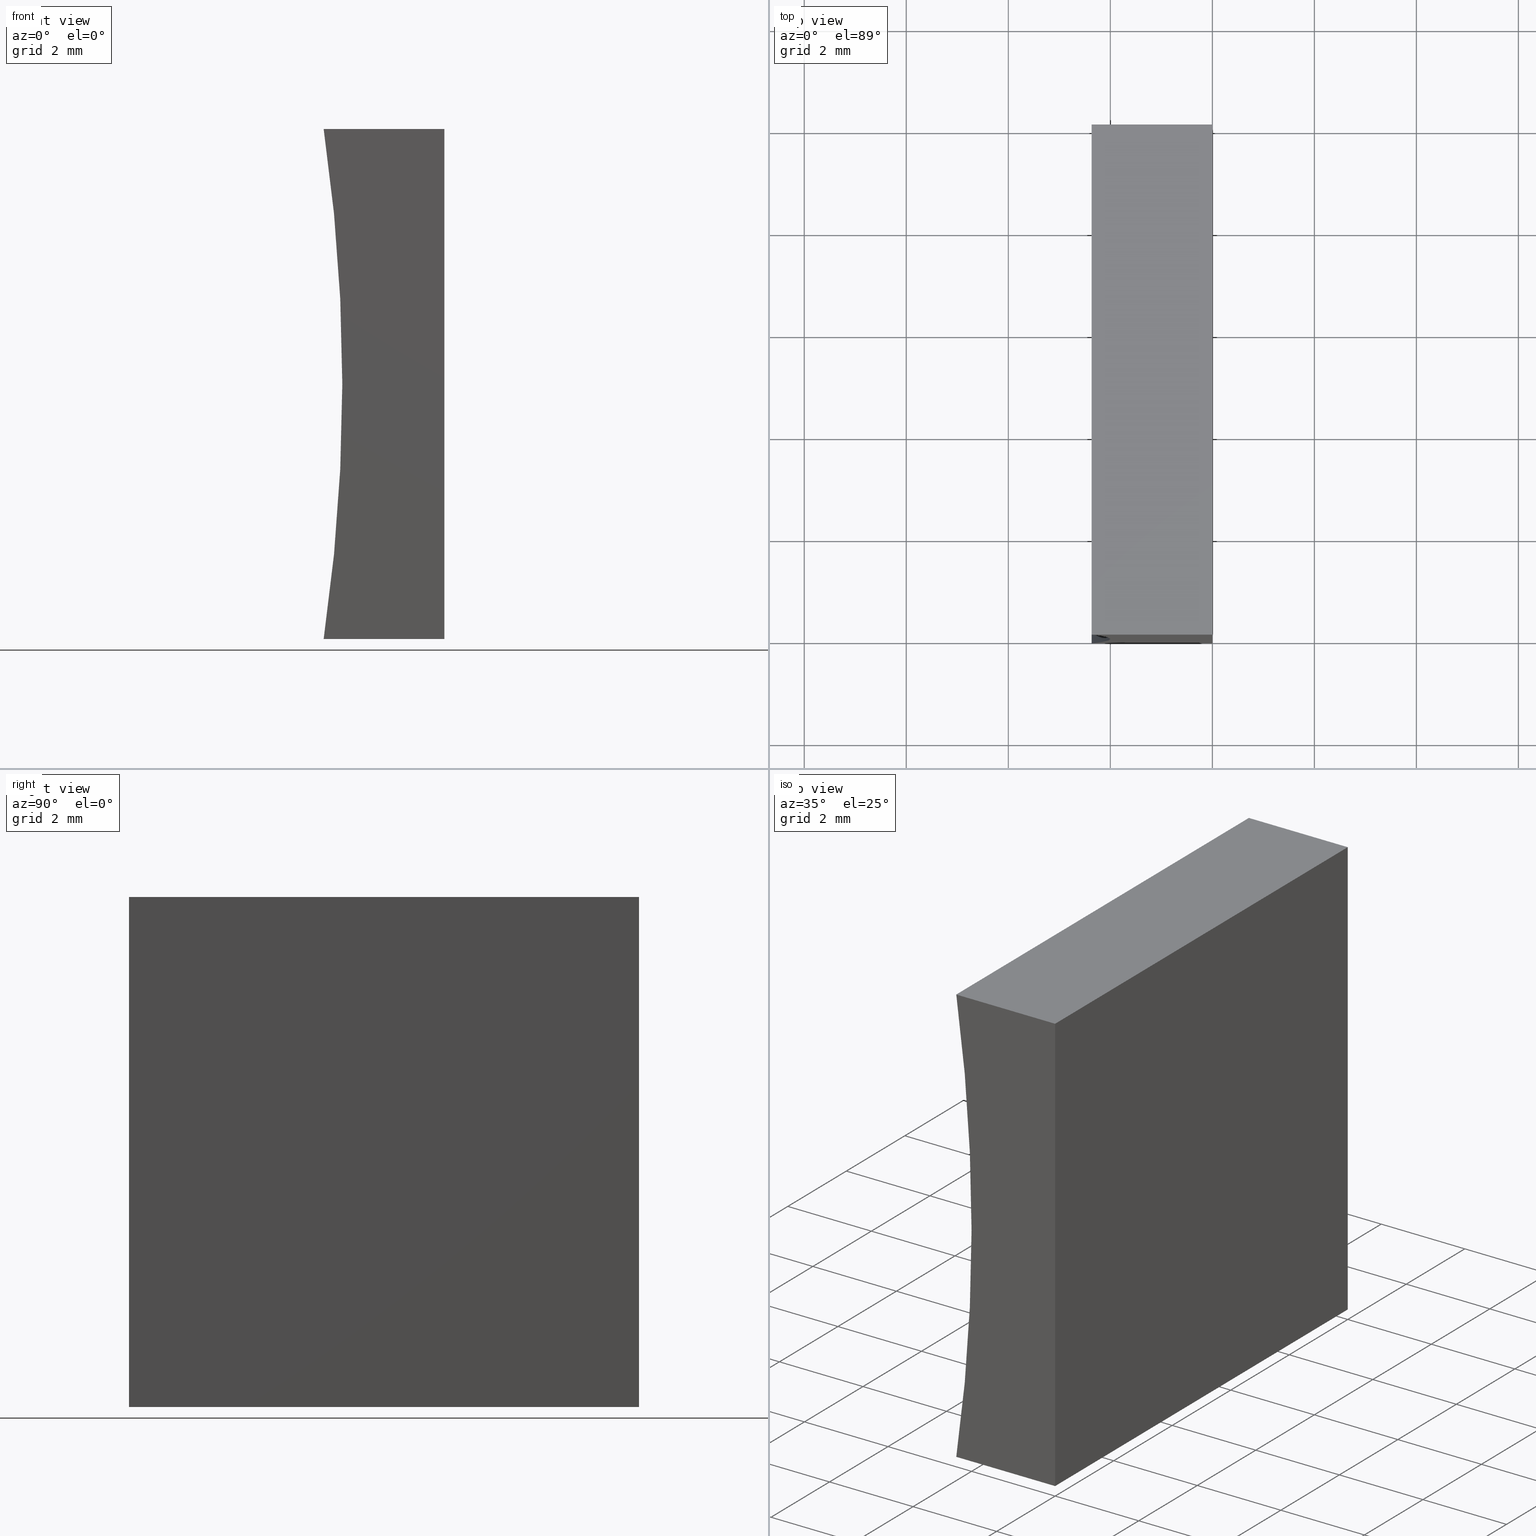
[diagram: canonical four-view strip — front | top / right | iso, engineering-drawing reading convention]
A machine part, canonical four-view strip (front | top / right | iso — engineering-drawing reading convention). The complete STEP part file that produces these views, byte-faithful:
ISO-10303-21;
HEADER;
FILE_DESCRIPTION (( 'STEP AP214' ),
    '1' );
FILE_NAME ('155469.STEP',
    '2019-07-03T05:55:14',
    ( 'user' ),
    ( '΢���й�' ),
    'SwSTEP 2.0',
    'SolidWorks 2016',
    '' );
FILE_SCHEMA (( 'AUTOMOTIVE_DESIGN' ));
ENDSEC;

DATA;
#1 = ORIENTED_EDGE ( 'NONE', *, *, #154, .F. ) ;
#2 = DIRECTION ( 'NONE',  ( 1.000000000000000000, -0.0000000000000000000, -7.332349904615361600E-016 ) ) ;
#3 = COLOUR_RGB ( '',1.000000000000000000, 1.000000000000000000, 1.000000000000000000 ) ;
#4 = FILL_AREA_STYLE_COLOUR ( '', #3 ) ;
#5 = ORIENTED_EDGE ( 'NONE', *, *, #108, .F. ) ;
#6 = ORIENTED_EDGE ( 'NONE', *, *, #147, .T. ) ;
#7 = LINE ( 'NONE', #120, #165 ) ;
#8 =( LENGTH_UNIT ( ) NAMED_UNIT ( * ) SI_UNIT ( .MILLI., .METRE. ) );
#9 = ORIENTED_EDGE ( 'NONE', *, *, #62, .F. ) ;
#10 = CARTESIAN_POINT ( 'NONE',  ( 0.0000000000000000000, 0.0000000000000000000, 0.0000000000000000000 ) ) ;
#11 = SURFACE_SIDE_STYLE ('',( #142 ) ) ;
#12 = DIRECTION ( 'NONE',  ( 0.0000000000000000000, -0.0000000000000000000, 1.000000000000000000 ) ) ;
#13 = VECTOR ( 'NONE', #32, 1000.000000000000000 ) ;
#14 = ADVANCED_FACE ( 'NONE', ( #111 ), #54, .F. ) ;
#15 = STYLED_ITEM ( 'NONE', ( #130 ), #127 ) ;
#16 = CARTESIAN_POINT ( 'NONE',  ( -36.35000000000000100, 0.0000000000000000000, 5.000000000000005300 ) ) ;
#17 = CARTESIAN_POINT ( 'NONE',  ( -2.365849282349280300, 10.00000000000000000, 10.00000000000000200 ) ) ;
#18 = LINE ( 'NONE', #124, #26 ) ;
#19 = FACE_OUTER_BOUND ( 'NONE', #128, .T. ) ;
#20 = LINE ( 'NONE', #117, #13 ) ;
#21 = VERTEX_POINT ( 'NONE', #97 ) ;
#22 = DIRECTION ( 'NONE',  ( 0.0000000000000000000, 0.0000000000000000000, 1.000000000000000000 ) ) ;
#23 =( GEOMETRIC_REPRESENTATION_CONTEXT ( 3 ) GLOBAL_UNCERTAINTY_ASSIGNED_CONTEXT ( ( #202 ) ) GLOBAL_UNIT_ASSIGNED_CONTEXT ( ( #171, #194, #146 ) ) REPRESENTATION_CONTEXT ( 'NONE', 'WORKASPACE' ) );
#24 = DIRECTION ( 'NONE',  ( -0.0000000000000000000, -1.000000000000000000, -0.0000000000000000000 ) ) ;
#25 = ORIENTED_EDGE ( 'NONE', *, *, #70, .F. ) ;
#26 = VECTOR ( 'NONE', #2, 1000.000000000000000 ) ;
#27 = PRESENTATION_LAYER_ASSIGNMENT (  '', '', ( #65 ) ) ;
#28 = PRODUCT_DEFINITION_SHAPE ( 'NONE', 'NONE',  #75 ) ;
#29 = ORIENTED_EDGE ( 'NONE', *, *, #184, .F. ) ;
#30 = VECTOR ( 'NONE', #38, 1000.000000000000000 ) ;
#31 = DIRECTION ( 'NONE',  ( 0.0000000000000000000, -0.0000000000000000000, 1.000000000000000000 ) ) ;
#32 = DIRECTION ( 'NONE',  ( -0.0000000000000000000, -1.000000000000000000, -0.0000000000000000000 ) ) ;
#33 = MECHANICAL_DESIGN_GEOMETRIC_PRESENTATION_REPRESENTATION (  '', ( #65 ), #37 ) ;
#34 = VECTOR ( 'NONE', #192, 1000.000000000000000 ) ;
#35 = DIRECTION ( 'NONE',  ( -0.0000000000000000000, -1.000000000000000000, -0.0000000000000000000 ) ) ;
#36 = CIRCLE ( 'NONE', #195, 34.35000000000000100 ) ;
#37 =( GEOMETRIC_REPRESENTATION_CONTEXT ( 3 ) GLOBAL_UNCERTAINTY_ASSIGNED_CONTEXT ( ( #53 ) ) GLOBAL_UNIT_ASSIGNED_CONTEXT ( ( #8, #135, #200 ) ) REPRESENTATION_CONTEXT ( 'NONE', 'WORKASPACE' ) );
#38 = DIRECTION ( 'NONE',  ( -6.123233995736766000E-017, -0.0000000000000000000, -1.000000000000000000 ) ) ;
#39 = VERTEX_POINT ( 'NONE', #181 ) ;
#40 = FACE_OUTER_BOUND ( 'NONE', #158, .T. ) ;
#41 = EDGE_CURVE ( 'NONE', #45, #196, #159, .T. ) ;
#42 = LINE ( 'NONE', #174, #34 ) ;
#43 = ORIENTED_EDGE ( 'NONE', *, *, #108, .T. ) ;
#44 = AXIS2_PLACEMENT_3D ( 'NONE', #133, #180, #139 ) ;
#45 = VERTEX_POINT ( 'NONE', #79 ) ;
#46 = CARTESIAN_POINT ( 'NONE',  ( 0.0000000000000000000, 10.00000000000000000, 0.0000000000000000000 ) ) ;
#47 = AXIS2_PLACEMENT_3D ( 'NONE', #46, #96, #64 ) ;
#48 = VERTEX_POINT ( 'NONE', #161 ) ;
#49 = SURFACE_STYLE_USAGE ( .BOTH. , #198 ) ;
#50 = FILL_AREA_STYLE ('',( #188 ) ) ;
#51 = CARTESIAN_POINT ( 'NONE',  ( -2.365849282349280300, 10.00000000000000000, 10.00000000000000200 ) ) ;
#52 = EDGE_LOOP ( 'NONE', ( #43, #113, #191, #137 ) ) ;
#53 = UNCERTAINTY_MEASURE_WITH_UNIT (LENGTH_MEASURE( 1.000000000000000100E-005 ), #8, 'distance_accuracy_value', 'NONE');
#54 = PLANE ( 'NONE',  #56 ) ;
#55 = VERTEX_POINT ( 'NONE', #10 ) ;
#56 = AXIS2_PLACEMENT_3D ( 'NONE', #68, #122, #126 ) ;
#57 = CARTESIAN_POINT ( 'NONE',  ( 0.0000000000000000000, 0.0000000000000000000, 0.0000000000000000000 ) ) ;
#58 = MECHANICAL_DESIGN_GEOMETRIC_PRESENTATION_REPRESENTATION (  '', ( #15 ), #123 ) ;
#59 = SHAPE_DEFINITION_REPRESENTATION ( #28, #127 ) ;
#60 = ORIENTED_EDGE ( 'NONE', *, *, #100, .T. ) ;
#61 = PRODUCT_RELATED_PRODUCT_CATEGORY ( 'part', '', ( #187 ) ) ;
#62 = EDGE_CURVE ( 'NONE', #196, #85, #115, .T. ) ;
#63 = SURFACE_STYLE_FILL_AREA ( #50 ) ;
#64 = DIRECTION ( 'NONE',  ( 1.000000000000000000, 0.0000000000000000000, 7.332349904615358700E-016 ) ) ;
#65 = STYLED_ITEM ( 'NONE', ( #83 ), #155 ) ;
#66 = ADVANCED_FACE ( 'NONE', ( #177 ), #201, .F. ) ;
#67 = EDGE_LOOP ( 'NONE', ( #72, #1, #175, #82 ) ) ;
#68 = CARTESIAN_POINT ( 'NONE',  ( 6.123233995736766300E-016, 10.00000000000000000, 10.00000000000000000 ) ) ;
#69 = LINE ( 'NONE', #131, #30 ) ;
#70 = EDGE_CURVE ( 'NONE', #21, #55, #92, .T. ) ;
#71 =( NAMED_UNIT ( * ) PLANE_ANGLE_UNIT ( ) SI_UNIT ( $, .RADIAN. ) );
#72 = ORIENTED_EDGE ( 'NONE', *, *, #114, .T. ) ;
#73 = CARTESIAN_POINT ( 'NONE',  ( -2.365849282349280300, 0.0000000000000000000, 10.00000000000000200 ) ) ;
#74 = LINE ( 'NONE', #157, #86 ) ;
#75 = PRODUCT_DEFINITION ( 'δ֪', '', #185, #144 ) ;
#76 = PRESENTATION_LAYER_ASSIGNMENT (  '', '', ( #15 ) ) ;
#77 = CARTESIAN_POINT ( 'NONE',  ( 6.123233995736766300E-016, 10.00000000000000000, 10.00000000000000000 ) ) ;
#78 = ORIENTED_EDGE ( 'NONE', *, *, #147, .F. ) ;
#79 = CARTESIAN_POINT ( 'NONE',  ( -2.365849282349278900, 10.00000000000000000, 8.673617379884035500E-016 ) ) ;
#80 = PRODUCT_CONTEXT ( 'NONE', #118, 'mechanical' ) ;
#81 = CARTESIAN_POINT ( 'NONE',  ( 0.0000000000000000000, 0.0000000000000000000, 0.0000000000000000000 ) ) ;
#82 = ORIENTED_EDGE ( 'NONE', *, *, #190, .T. ) ;
#83 = PRESENTATION_STYLE_ASSIGNMENT (( #49 ) ) ;
#84 = ORIENTED_EDGE ( 'NONE', *, *, #140, .F. ) ;
#85 = VERTEX_POINT ( 'NONE', #179 ) ;
#86 = VECTOR ( 'NONE', #178, 1000.000000000000000 ) ;
#87 = ADVANCED_FACE ( 'NONE', ( #19 ), #170, .F. ) ;
#88 = DIRECTION ( 'NONE',  ( 0.0000000000000000000, 1.000000000000000000, 0.0000000000000000000 ) ) ;
#89 = ADVANCED_FACE ( 'NONE', ( #166 ), #182, .F. ) ;
#90 = ORIENTED_EDGE ( 'NONE', *, *, #140, .T. ) ;
#91 = CARTESIAN_POINT ( 'NONE',  ( -36.35000000000000100, 10.00000000000000000, 5.000000000000005300 ) ) ;
#92 = LINE ( 'NONE', #145, #164 ) ;
#93 = AXIS2_PLACEMENT_3D ( 'NONE', #110, #169, #12 ) ;
#94 =( LENGTH_UNIT ( ) NAMED_UNIT ( * ) SI_UNIT ( .MILLI., .METRE. ) );
#95 = LINE ( 'NONE', #51, #106 ) ;
#96 = DIRECTION ( 'NONE',  ( -7.332349904615358700E-016, 0.0000000000000000000, 1.000000000000000000 ) ) ;
#97 = CARTESIAN_POINT ( 'NONE',  ( 6.123233995736766300E-016, 0.0000000000000000000, 10.00000000000000000 ) ) ;
#98 = DIRECTION ( 'NONE',  ( -0.0000000000000000000, -1.000000000000000000, -0.0000000000000000000 ) ) ;
#99 =( NAMED_UNIT ( * ) SI_UNIT ( $, .STERADIAN. ) SOLID_ANGLE_UNIT ( ) );
#100 = EDGE_CURVE ( 'NONE', #112, #21, #18, .T. ) ;
#101 = APPLICATION_CONTEXT ( 'automotive_design' ) ;
#102 = SURFACE_STYLE_USAGE ( .BOTH. , #11 ) ;
#103 = DIRECTION ( 'NONE',  ( 0.0000000000000000000, 0.0000000000000000000, -1.000000000000000000 ) ) ;
#104 = DIRECTION ( 'NONE',  ( 0.0000000000000000000, 0.0000000000000000000, 1.000000000000000000 ) ) ;
#105 = AXIS2_PLACEMENT_3D ( 'NONE', #167, #153, #103 ) ;
#106 = VECTOR ( 'NONE', #35, 1000.000000000000000 ) ;
#107 = APPLICATION_PROTOCOL_DEFINITION ( 'draft international standard', 'automotive_design', 1998, #101 ) ;
#108 = EDGE_CURVE ( 'NONE', #48, #45, #42, .T. ) ;
#109 = APPLICATION_PROTOCOL_DEFINITION ( 'draft international standard', 'automotive_design', 1998, #118 ) ;
#110 = CARTESIAN_POINT ( 'NONE',  ( -36.35000000000000100, 10.00000000000000000, 5.000000000000005300 ) ) ;
#111 = FACE_OUTER_BOUND ( 'NONE', #168, .T. ) ;
#112 = VERTEX_POINT ( 'NONE', #73 ) ;
#113 = ORIENTED_EDGE ( 'NONE', *, *, #41, .T. ) ;
#114 = EDGE_CURVE ( 'NONE', #39, #112, #36, .T. ) ;
#115 = LINE ( 'NONE', #77, #136 ) ;
#116 = ORIENTED_EDGE ( 'NONE', *, *, #190, .F. ) ;
#117 = CARTESIAN_POINT ( 'NONE',  ( 6.123233995736766300E-016, 10.00000000000000000, 10.00000000000000000 ) ) ;
#118 = APPLICATION_CONTEXT ( 'automotive_design' ) ;
#119 = AXIS2_PLACEMENT_3D ( 'NONE', #189, #88, #31 ) ;
#120 = CARTESIAN_POINT ( 'NONE',  ( 0.0000000000000000000, 10.00000000000000000, 0.0000000000000000000 ) ) ;
#121 = DIRECTION ( 'NONE',  ( -0.0000000000000000000, -1.000000000000000000, -0.0000000000000000000 ) ) ;
#122 = DIRECTION ( 'NONE',  ( -7.332349904615362600E-016, 0.0000000000000000000, -1.000000000000000000 ) ) ;
#123 =( GEOMETRIC_REPRESENTATION_CONTEXT ( 3 ) GLOBAL_UNCERTAINTY_ASSIGNED_CONTEXT ( ( #148 ) ) GLOBAL_UNIT_ASSIGNED_CONTEXT ( ( #94, #71, #99 ) ) REPRESENTATION_CONTEXT ( 'NONE', 'WORKASPACE' ) );
#124 = CARTESIAN_POINT ( 'NONE',  ( 6.123233995736766300E-016, 0.0000000000000000000, 10.00000000000000000 ) ) ;
#125 = COLOUR_RGB ( '',1.000000000000000000, 1.000000000000000000, 1.000000000000000000 ) ;
#126 = DIRECTION ( 'NONE',  ( -1.000000000000000000, 0.0000000000000000000, 7.332349904615362600E-016 ) ) ;
#127 = ADVANCED_BREP_SHAPE_REPRESENTATION ( '155469', ( #155, #143 ), #23 ) ;
#128 = EDGE_LOOP ( 'NONE', ( #84, #25, #186, #193 ) ) ;
#129 = ORIENTED_EDGE ( 'NONE', *, *, #70, .T. ) ;
#130 = PRESENTATION_STYLE_ASSIGNMENT (( #102 ) ) ;
#131 = CARTESIAN_POINT ( 'NONE',  ( 0.0000000000000000000, 10.00000000000000000, 0.0000000000000000000 ) ) ;
#132 = LINE ( 'NONE', #57, #149 ) ;
#133 = CARTESIAN_POINT ( 'NONE',  ( 0.0000000000000000000, 10.00000000000000000, 0.0000000000000000000 ) ) ;
#134 = ADVANCED_FACE ( 'NONE', ( #204 ), #162, .T. ) ;
#135 =( NAMED_UNIT ( * ) PLANE_ANGLE_UNIT ( ) SI_UNIT ( $, .RADIAN. ) );
#136 = VECTOR ( 'NONE', #138, 1000.000000000000000 ) ;
#137 = ORIENTED_EDGE ( 'NONE', *, *, #184, .T. ) ;
#138 = DIRECTION ( 'NONE',  ( 1.000000000000000000, -0.0000000000000000000, -7.332349904615361600E-016 ) ) ;
#139 = DIRECTION ( 'NONE',  ( 6.123233995736766000E-017, 0.0000000000000000000, 1.000000000000000000 ) ) ;
#140 = EDGE_CURVE ( 'NONE', #55, #39, #132, .T. ) ;
#141 = DIRECTION ( 'NONE',  ( 1.000000000000000000, 0.0000000000000000000, 0.0000000000000000000 ) ) ;
#142 = SURFACE_STYLE_FILL_AREA ( #151 ) ;
#143 = AXIS2_PLACEMENT_3D ( 'NONE', #81, #22, #141 ) ;
#144 = PRODUCT_DEFINITION_CONTEXT ( 'detailed design', #101, 'design' ) ;
#145 = CARTESIAN_POINT ( 'NONE',  ( 0.0000000000000000000, 0.0000000000000000000, 0.0000000000000000000 ) ) ;
#146 =( NAMED_UNIT ( * ) SI_UNIT ( $, .STERADIAN. ) SOLID_ANGLE_UNIT ( ) );
#147 = EDGE_CURVE ( 'NONE', #85, #21, #20, .T. ) ;
#148 = UNCERTAINTY_MEASURE_WITH_UNIT (LENGTH_MEASURE( 1.000000000000000100E-005 ), #94, 'distance_accuracy_value', 'NONE');
#149 = VECTOR ( 'NONE', #199, 1000.000000000000000 ) ;
#150 = ORIENTED_EDGE ( 'NONE', *, *, #172, .F. ) ;
#151 = FILL_AREA_STYLE ('',( #4 ) ) ;
#152 = ORIENTED_EDGE ( 'NONE', *, *, #172, .T. ) ;
#153 = DIRECTION ( 'NONE',  ( -0.0000000000000000000, -1.000000000000000000, -0.0000000000000000000 ) ) ;
#154 = EDGE_CURVE ( 'NONE', #196, #112, #95, .T. ) ;
#155 = MANIFOLD_SOLID_BREP ( '͹̨-����1', #176 ) ;
#156 = PLANE ( 'NONE',  #47 ) ;
#157 = CARTESIAN_POINT ( 'NONE',  ( -2.365849282349278900, 10.00000000000000000, 8.673617379884035500E-016 ) ) ;
#158 = EDGE_LOOP ( 'NONE', ( #90, #116, #5, #152 ) ) ;
#159 = CIRCLE ( 'NONE', #163, 34.35000000000000100 ) ;
#160 = DIRECTION ( 'NONE',  ( 0.0000000000000000000, 0.0000000000000000000, 1.000000000000000000 ) ) ;
#161 = CARTESIAN_POINT ( 'NONE',  ( 0.0000000000000000000, 10.00000000000000000, 0.0000000000000000000 ) ) ;
#162 = PLANE ( 'NONE',  #93 ) ;
#163 = AXIS2_PLACEMENT_3D ( 'NONE', #91, #98, #104 ) ;
#164 = VECTOR ( 'NONE', #173, 1000.000000000000000 ) ;
#165 = VECTOR ( 'NONE', #24, 1000.000000000000000 ) ;
#166 = FACE_OUTER_BOUND ( 'NONE', #183, .T. ) ;
#167 = CARTESIAN_POINT ( 'NONE',  ( -36.35000000000000100, 10.00000000000000000, 5.000000000000005300 ) ) ;
#168 = EDGE_LOOP ( 'NONE', ( #60, #78, #9, #197 ) ) ;
#169 = DIRECTION ( 'NONE',  ( 0.0000000000000000000, 1.000000000000000000, 0.0000000000000000000 ) ) ;
#170 = PLANE ( 'NONE',  #119 ) ;
#171 =( LENGTH_UNIT ( ) NAMED_UNIT ( * ) SI_UNIT ( .MILLI., .METRE. ) );
#172 = EDGE_CURVE ( 'NONE', #48, #55, #7, .T. ) ;
#173 = DIRECTION ( 'NONE',  ( -6.123233995736766000E-017, -0.0000000000000000000, -1.000000000000000000 ) ) ;
#174 = CARTESIAN_POINT ( 'NONE',  ( 0.0000000000000000000, 10.00000000000000000, 0.0000000000000000000 ) ) ;
#175 = ORIENTED_EDGE ( 'NONE', *, *, #41, .F. ) ;
#176 = CLOSED_SHELL ( 'NONE', ( #203, #66, #14, #89, #134, #87 ) ) ;
#177 = FACE_OUTER_BOUND ( 'NONE', #67, .T. ) ;
#178 = DIRECTION ( 'NONE',  ( -0.0000000000000000000, -1.000000000000000000, -0.0000000000000000000 ) ) ;
#179 = CARTESIAN_POINT ( 'NONE',  ( 6.123233995736766300E-016, 10.00000000000000000, 10.00000000000000000 ) ) ;
#180 = DIRECTION ( 'NONE',  ( -1.000000000000000000, 0.0000000000000000000, 6.123233995736766000E-017 ) ) ;
#181 = CARTESIAN_POINT ( 'NONE',  ( -2.365849282349278900, 0.0000000000000000000, 8.673617379884035500E-016 ) ) ;
#182 = PLANE ( 'NONE',  #44 ) ;
#183 = EDGE_LOOP ( 'NONE', ( #129, #150, #29, #6 ) ) ;
#184 = EDGE_CURVE ( 'NONE', #85, #48, #69, .T. ) ;
#185 = PRODUCT_DEFINITION_FORMATION_WITH_SPECIFIED_SOURCE ( '�κ�', '', #187, .NOT_KNOWN. ) ;
#186 = ORIENTED_EDGE ( 'NONE', *, *, #100, .F. ) ;
#187 = PRODUCT ( '155469', '155469', '', ( #80 ) ) ;
#188 = FILL_AREA_STYLE_COLOUR ( '', #125 ) ;
#189 = CARTESIAN_POINT ( 'NONE',  ( -36.35000000000000100, 0.0000000000000000000, 5.000000000000005300 ) ) ;
#190 = EDGE_CURVE ( 'NONE', #45, #39, #74, .T. ) ;
#191 = ORIENTED_EDGE ( 'NONE', *, *, #62, .T. ) ;
#192 = DIRECTION ( 'NONE',  ( -1.000000000000000000, 0.0000000000000000000, -7.332349904615358700E-016 ) ) ;
#193 = ORIENTED_EDGE ( 'NONE', *, *, #114, .F. ) ;
#194 =( NAMED_UNIT ( * ) PLANE_ANGLE_UNIT ( ) SI_UNIT ( $, .RADIAN. ) );
#195 = AXIS2_PLACEMENT_3D ( 'NONE', #16, #121, #160 ) ;
#196 = VERTEX_POINT ( 'NONE', #17 ) ;
#197 = ORIENTED_EDGE ( 'NONE', *, *, #154, .T. ) ;
#198 = SURFACE_SIDE_STYLE ('',( #63 ) ) ;
#199 = DIRECTION ( 'NONE',  ( -1.000000000000000000, 0.0000000000000000000, -7.332349904615358700E-016 ) ) ;
#200 =( NAMED_UNIT ( * ) SI_UNIT ( $, .STERADIAN. ) SOLID_ANGLE_UNIT ( ) );
#201 = CYLINDRICAL_SURFACE ( 'NONE', #105, 34.35000000000000100 ) ;
#202 = UNCERTAINTY_MEASURE_WITH_UNIT (LENGTH_MEASURE( 1.000000000000000100E-005 ), #171, 'distance_accuracy_value', 'NONE');
#203 = ADVANCED_FACE ( 'NONE', ( #40 ), #156, .F. ) ;
#204 = FACE_OUTER_BOUND ( 'NONE', #52, .T. ) ;
ENDSEC;
END-ISO-10303-21;
